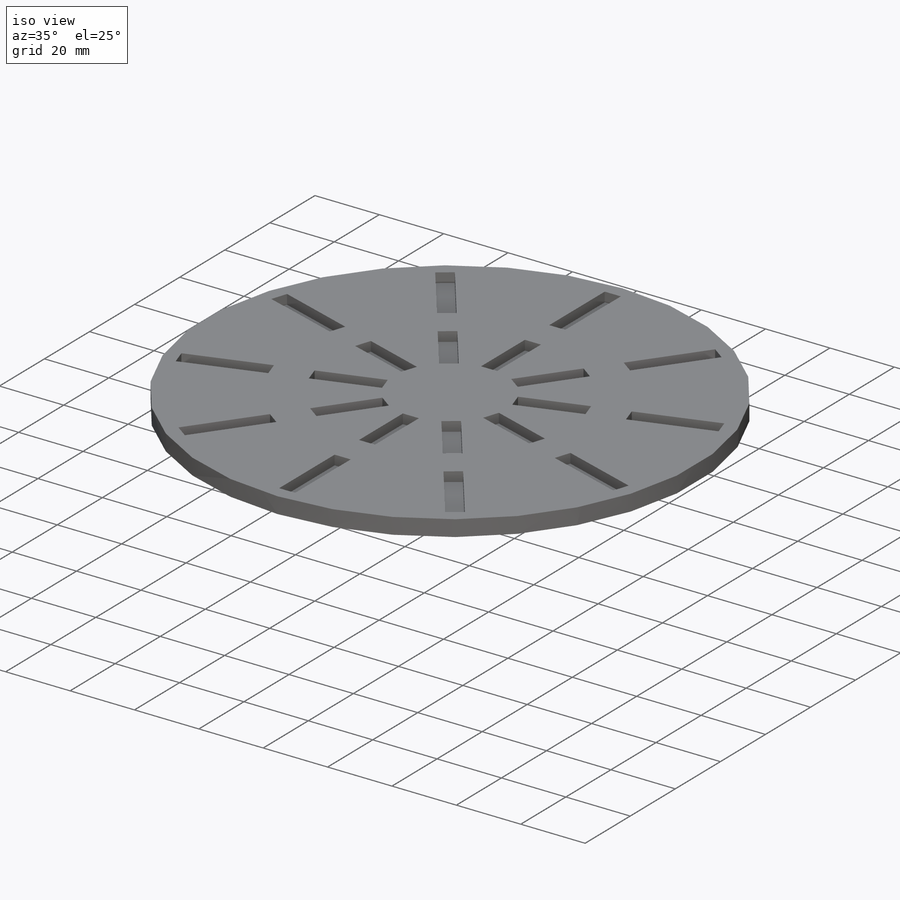
[diagram: iso view]
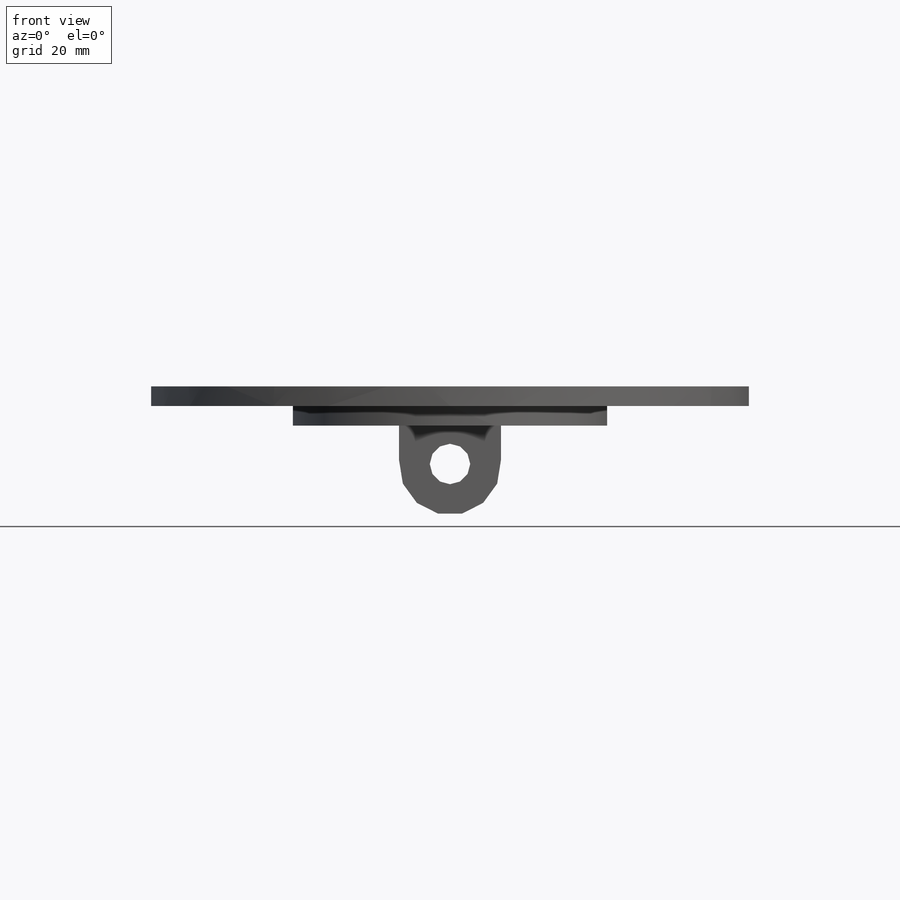
[diagram: front view]
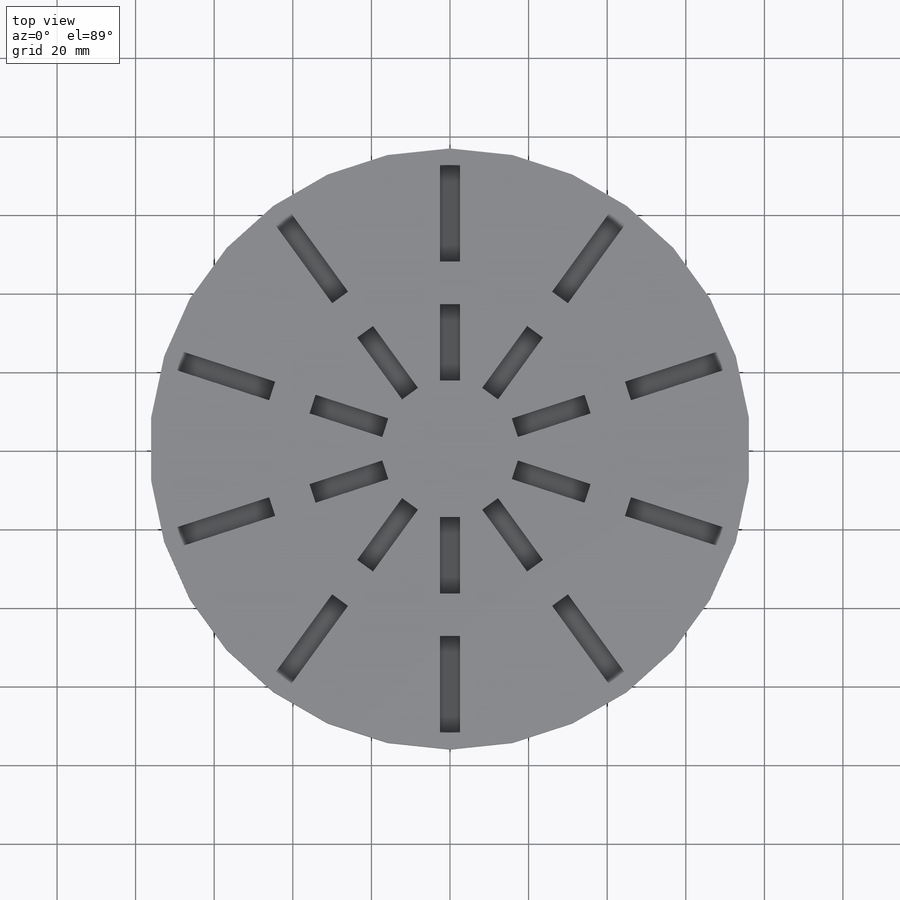
[diagram: top view]
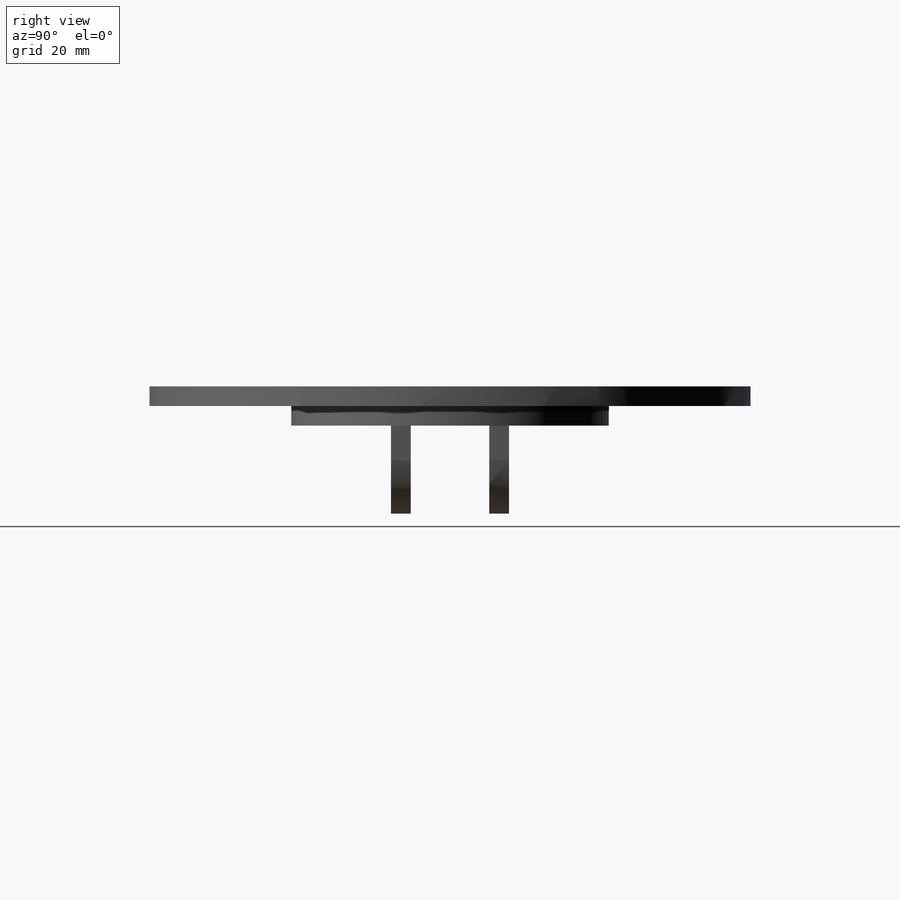
[diagram: right view]
SOLIDWORKS PART (.sldprt)
format: sldprt  version: not decoded by parser v0  size: 326,656 bytes
history: native  units: mm
features: sketch x5, extrude x3, material x1, plane x1, cut_extrude x1, pattern_circular x1, mirror x1, chamfer x1 (+13 scaffold rows collapsed)
feature tree (27):
  scaffold x13  (default folders/planes/origin — collapsed)
  material  "Material <not specified>"
  plane  "Plane1"  Offset=10mm
  sketch  "Sketch1"  dims[D1=5.0mm D2=100.0mm D3=25.0mm D4=30.0mm D5=20.0mm D6=25.0mm]
  extrude  "Boss-Extrude1"  Depth=5mm
  extrude  "Boss-Extrude2"  [1 undecoded]
  sketch  "Sketch1<3>"  dims[D1=10.0mm]
  cut_extrude  "Cut-Extrude1"  [1 undecoded]
  sketch  "Sketch1<4>"  dims[D1=3.0mm]
  sketch  "Sketch3"
  pattern_circular  "CirPattern1"  Count=12 Angle=360deg
  sketch  "Sketch4"
  extrude  "Boss-Extrude3"  Depth=8mm
  mirror  "Mirror1"
  chamfer  "Chamfer1"  Distance=5mm Angle=25deg
decode coverage: 7 of 12 modeling features carry decoded parameters
note: 2 parameter values undecoded
note: suppression state not decoded; provenance and decode notes live in map.json
